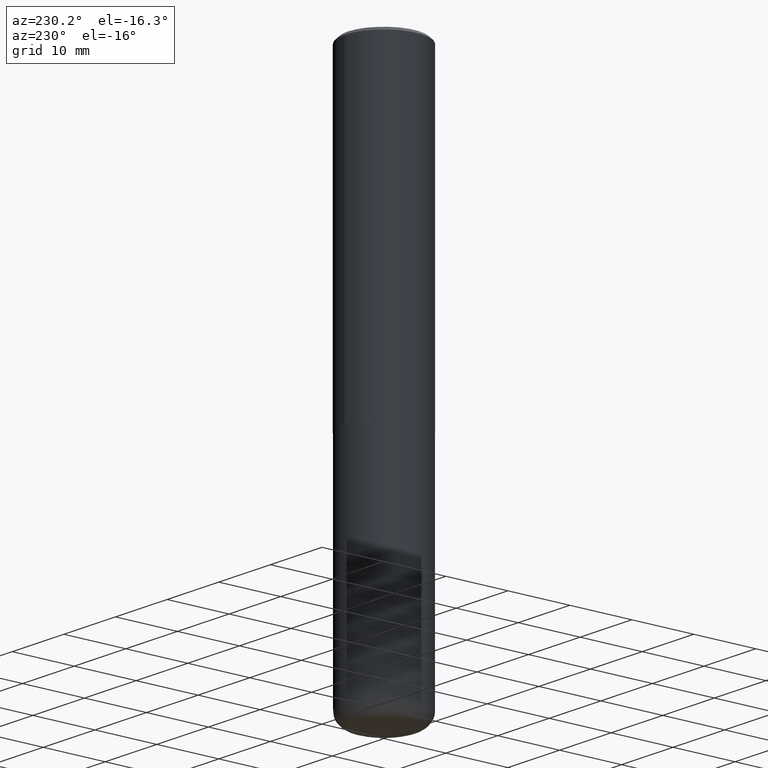
[diagram: clean part render]
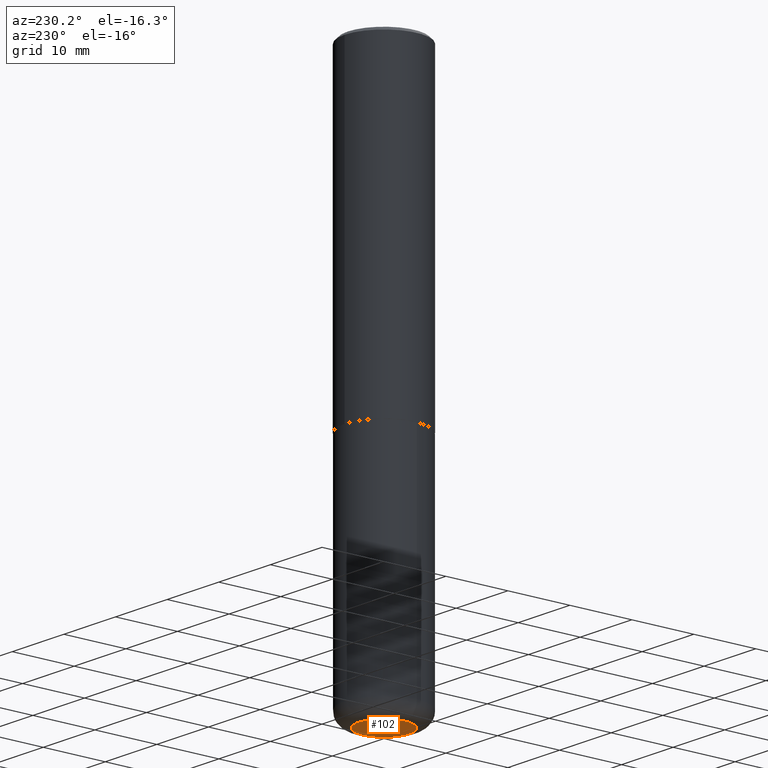
[diagram: same view with one face highlighted and labeled with its STEP entity id]
A machine part, auxiliary view. The second image highlights one B-rep face of the part: STEP entity #102.
In plain terms, the highlighted planar face has unit normal (0, -0, -1).
Its self-contained STEP definition (entity closure, byte-faithful):
#10 = ORIENTED_EDGE ( 'NONE', *, *, #392, .F. ) ;
#16 = VERTEX_POINT ( 'NONE', #249 ) ;
#27 = DIRECTION ( 'NONE',  ( 2.438088387897960049E-29, -3.491481338843145188E-15, -1.000000000000000000 ) ) ;
#56 = CARTESIAN_POINT ( 'NONE',  ( 0.1600000000000000033, -1.333745871438080791E-14, -3.499999999999999112 ) ) ;
#92 = DIRECTION ( 'NONE',  ( -2.445468806185136597E-29, 3.491481338843145583E-15, 1.000000000000000000 ) ) ;
#101 = VERTEX_POINT ( 'NONE', #56 ) ;
#102 = ADVANCED_FACE ( 'NONE', ( #346 ), #300, .T. ) ;
#115 = EDGE_CURVE ( 'NONE', #101, #16, #167, .T. ) ;
#131 = DIRECTION ( 'NONE',  ( 1.000000000000000000, -6.982962677686259611E-15, 0.000000000000000000 ) ) ;
#156 = CARTESIAN_POINT ( 'NONE',  ( 8.559140821647976968E-29, -1.222018468595100619E-14, -3.499999999999999112 ) ) ;
#161 = DIRECTION ( 'NONE',  ( -1.000000000000000000, 6.982962677686265922E-15, -4.876176775795935793E-29 ) ) ;
#167 = CIRCLE ( 'NONE', #270, 0.1600000000000000033 ) ;
#194 = AXIS2_PLACEMENT_3D ( 'NONE', #358, #293, #131 ) ;
#223 = DIRECTION ( 'NONE',  ( 1.000000000000000000, -6.982962677686259611E-15, 0.000000000000000000 ) ) ;
#249 = CARTESIAN_POINT ( 'NONE',  ( -0.1600000000000000033, -1.060645541739486182E-14, -3.499999999999999112 ) ) ;
#269 = EDGE_LOOP ( 'NONE', ( #359, #10 ) ) ;
#270 = AXIS2_PLACEMENT_3D ( 'NONE', #156, #92, #223 ) ;
#293 = DIRECTION ( 'NONE',  ( -2.445468806185136597E-29, 3.491481338843145583E-15, 1.000000000000000000 ) ) ;
#300 = PLANE ( 'NONE',  #368 ) ;
#307 = CARTESIAN_POINT ( 'NONE',  ( 1.690506257577845460E-28, -2.683497136698531760E-16, -3.499999999999999112 ) ) ;
#311 = CIRCLE ( 'NONE', #194, 0.1600000000000000033 ) ;
#346 = FACE_OUTER_BOUND ( 'NONE', #269, .T. ) ;
#358 = CARTESIAN_POINT ( 'NONE',  ( 8.559140821647976968E-29, -1.222018468595100619E-14, -3.499999999999999112 ) ) ;
#359 = ORIENTED_EDGE ( 'NONE', *, *, #115, .F. ) ;
#368 = AXIS2_PLACEMENT_3D ( 'NONE', #307, #27, #161 ) ;
#392 = EDGE_CURVE ( 'NONE', #16, #101, #311, .T. ) ;